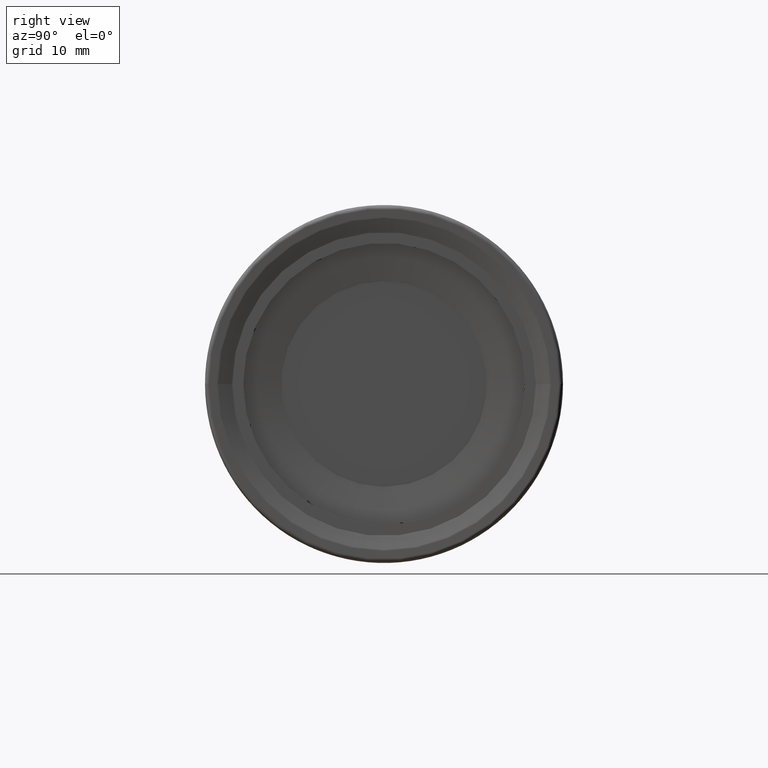
[diagram: clean part render]
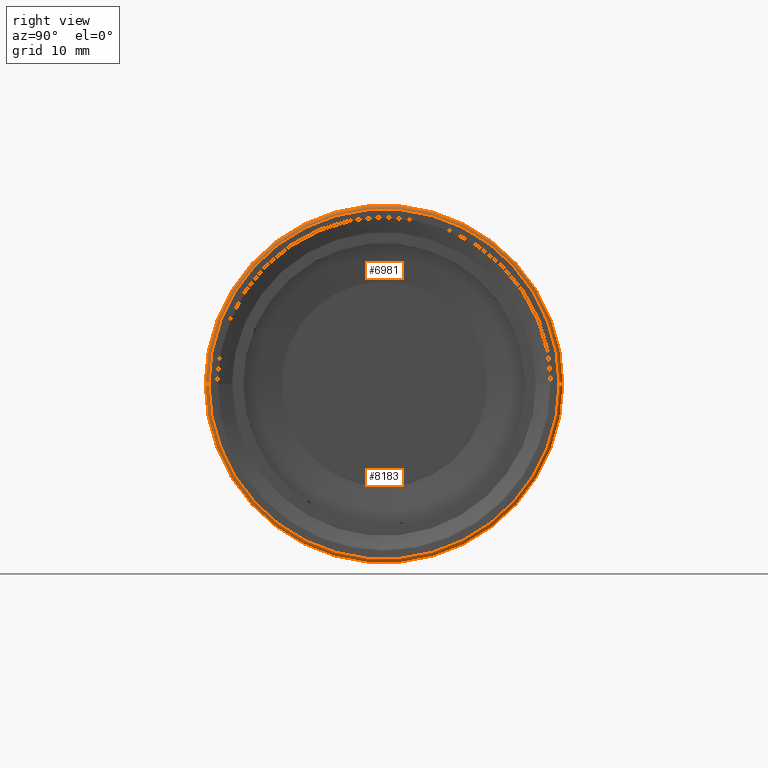
[diagram: same view with one multi-face feature highlighted, each face labeled with its STEP entity id]
A machine part, right view. The highlighted faces form ONE feature: a constant-radius fillet chain: 2 tangent blend faces with common blend radius 0.3973 mm. The faces share edges in the B-rep.
Their STEP definitions:
[1] entity #6981 (Torus):
#46 = ORIENTED_EDGE ( 'NONE', *, *, #8252, .T. ) ;
#47 = ORIENTED_EDGE ( 'NONE', *, *, #8247, .T. ) ;
#48 = ORIENTED_EDGE ( 'NONE', *, *, #8248, .F. ) ;
#49 = ORIENTED_EDGE ( 'NONE', *, *, #8250, .F. ) ;
#794 = CARTESIAN_POINT ( 'NONE',  ( 0.06184698097757743800, -19.97725509193579200, 2.446508150408933200E-015 ) ) ;
#803 = CARTESIAN_POINT ( 'NONE',  ( 0.4498085891554101100, 19.56774271559432400, 0.0000000000000000000 ) ) ;
#821 = CARTESIAN_POINT ( 'NONE',  ( 0.4498085891554148800, -19.56774271559432400, 2.421432749364043100E-015 ) ) ;
#831 = CARTESIAN_POINT ( 'NONE',  ( 0.06184698097757258800, 19.97725509193579200, 0.0000000000000000000 ) ) ;
#2157 = CIRCLE ( 'NONE', #2181, 19.56774271559432400 ) ;
#2173 = CIRCLE ( 'NONE', #2178, 0.3972863898013961900 ) ;
#2178 = AXIS2_PLACEMENT_3D ( 'NONE', #6635, #6636, #6637 ) ;
#2179 = CIRCLE ( 'NONE', #2185, 0.3972863898013975800 ) ;
#2181 = AXIS2_PLACEMENT_3D ( 'NONE', #6639, #6640, #6641 ) ;
#2185 = AXIS2_PLACEMENT_3D ( 'NONE', #6643, #6644, #6645 ) ;
#2186 = CIRCLE ( 'NONE', #2190, 19.97725509193579500 ) ;
#2190 = AXIS2_PLACEMENT_3D ( 'NONE', #6651, #6652, #6653 ) ;
#3282 = FACE_OUTER_BOUND ( 'NONE', #8976, .T. ) ;
#3285 = DIRECTION ( 'NONE',  ( 1.000000000000000000, 1.224646799147351200E-016, -0.0000000000000000000 ) ) ;
#3288 = CARTESIAN_POINT ( 'NONE',  ( 0.05271361019859348300, 0.0000000000000000000, 0.0000000000000000000 ) ) ;
#3290 = DIRECTION ( 'NONE',  ( -1.224646799147351200E-016, 1.000000000000000000, 0.0000000000000000000 ) ) ;
#5912 = TOROIDAL_SURFACE ( 'NONE', #5925, 19.58007370130974700, 0.3972863898013975200 ) ;
#5925 = AXIS2_PLACEMENT_3D ( 'NONE', #3288, #3285, #3290 ) ;
#6635 = CARTESIAN_POINT ( 'NONE',  ( 0.05271361019859588400, -19.58007370130974700, 2.397867458537825100E-015 ) ) ;
#6636 = DIRECTION ( 'NONE',  ( -1.499759782661855100E-032, 1.224646799147353200E-016, 1.000000000000000000 ) ) ;
#6637 = DIRECTION ( 'NONE',  ( 0.0000000000000000000, -1.000000000000000000, 1.224646799147356700E-016 ) ) ;
#6639 = CARTESIAN_POINT ( 'NONE',  ( 0.4498085891554125000, 5.508566489381619400E-017, 0.0000000000000000000 ) ) ;
#6640 = DIRECTION ( 'NONE',  ( 1.000000000000000000, 1.224646799147351200E-016, -0.0000000000000000000 ) ) ;
#6641 = DIRECTION ( 'NONE',  ( -1.218967774738376800E-016, 1.000000000000000000, 0.0000000000000000000 ) ) ;
#6643 = CARTESIAN_POINT ( 'NONE',  ( 0.05271361019859108900, 19.58007370130974700, 0.0000000000000000000 ) ) ;
#6644 = DIRECTION ( 'NONE',  ( -0.0000000000000000000, 0.0000000000000000000, -1.000000000000000000 ) ) ;
#6645 = DIRECTION ( 'NONE',  ( -1.000000000000000000, 0.0000000000000000000, 0.0000000000000000000 ) ) ;
#6651 = CARTESIAN_POINT ( 'NONE',  ( 0.06184698097757507900, 7.574070729111444400E-018, 0.0000000000000000000 ) ) ;
#6652 = DIRECTION ( 'NONE',  ( 1.000000000000000000, 1.224646799147351200E-016, -0.0000000000000000000 ) ) ;
#6653 = DIRECTION ( 'NONE',  ( -1.227900131404267600E-016, 1.000000000000000000, 0.0000000000000000000 ) ) ;
#6981 = ADVANCED_FACE ( 'NONE', ( #3282 ), #5912, .T. ) ;
#8247 = EDGE_CURVE ( 'NONE', #8565, #8592, #2173, .T. ) ;
#8248 = EDGE_CURVE ( 'NONE', #8574, #8592, #2157, .T. ) ;
#8250 = EDGE_CURVE ( 'NONE', #8602, #8574, #2179, .T. ) ;
#8252 = EDGE_CURVE ( 'NONE', #8602, #8565, #2186, .T. ) ;
#8565 = VERTEX_POINT ( 'NONE', #794 ) ;
#8574 = VERTEX_POINT ( 'NONE', #803 ) ;
#8592 = VERTEX_POINT ( 'NONE', #821 ) ;
#8602 = VERTEX_POINT ( 'NONE', #831 ) ;
#8976 = EDGE_LOOP ( 'NONE', ( #46, #47, #48, #49 ) ) ;
[2] entity #8183 (Torus):
#794 = CARTESIAN_POINT ( 'NONE',  ( 0.06184698097757743800, -19.97725509193579200, 2.446508150408933200E-015 ) ) ;
#803 = CARTESIAN_POINT ( 'NONE',  ( 0.4498085891554101100, 19.56774271559432400, 0.0000000000000000000 ) ) ;
#821 = CARTESIAN_POINT ( 'NONE',  ( 0.4498085891554148800, -19.56774271559432400, 2.421432749364043100E-015 ) ) ;
#831 = CARTESIAN_POINT ( 'NONE',  ( 0.06184698097757258800, 19.97725509193579200, 0.0000000000000000000 ) ) ;
#2092 = TOROIDAL_SURFACE ( 'NONE', #2106, 19.58007370130974700, 0.3972863898013975200 ) ;
#2106 = AXIS2_PLACEMENT_3D ( 'NONE', #5065, #5062, #5067 ) ;
#2173 = CIRCLE ( 'NONE', #2178, 0.3972863898013961900 ) ;
#2178 = AXIS2_PLACEMENT_3D ( 'NONE', #6635, #6636, #6637 ) ;
#2179 = CIRCLE ( 'NONE', #2185, 0.3972863898013975800 ) ;
#2184 = CIRCLE ( 'NONE', #2188, 19.56774271559432400 ) ;
#2185 = AXIS2_PLACEMENT_3D ( 'NONE', #6643, #6644, #6645 ) ;
#2188 = AXIS2_PLACEMENT_3D ( 'NONE', #6648, #6649, #6650 ) ;
#3266 = CARTESIAN_POINT ( 'NONE',  ( 0.06184698097757507900, 7.574070729111444400E-018, 0.0000000000000000000 ) ) ;
#3267 = DIRECTION ( 'NONE',  ( 1.000000000000000000, 1.224646799147351200E-016, -0.0000000000000000000 ) ) ;
#3268 = DIRECTION ( 'NONE',  ( -1.227900131404267600E-016, 1.000000000000000000, 0.0000000000000000000 ) ) ;
#3794 = ORIENTED_EDGE ( 'NONE', *, *, #8247, .F. ) ;
#3795 = ORIENTED_EDGE ( 'NONE', *, *, #6975, .T. ) ;
#3796 = ORIENTED_EDGE ( 'NONE', *, *, #8250, .T. ) ;
#3797 = ORIENTED_EDGE ( 'NONE', *, *, #8251, .F. ) ;
#5060 = FACE_OUTER_BOUND ( 'NONE', #9001, .T. ) ;
#5062 = DIRECTION ( 'NONE',  ( 1.000000000000000000, 1.224646799147351200E-016, -0.0000000000000000000 ) ) ;
#5065 = CARTESIAN_POINT ( 'NONE',  ( 0.05271361019859348300, 0.0000000000000000000, 0.0000000000000000000 ) ) ;
#5067 = DIRECTION ( 'NONE',  ( -1.224646799147351200E-016, 1.000000000000000000, 0.0000000000000000000 ) ) ;
#5907 = CIRCLE ( 'NONE', #5913, 19.97725509193579500 ) ;
#5913 = AXIS2_PLACEMENT_3D ( 'NONE', #3266, #3267, #3268 ) ;
#6635 = CARTESIAN_POINT ( 'NONE',  ( 0.05271361019859588400, -19.58007370130974700, 2.397867458537825100E-015 ) ) ;
#6636 = DIRECTION ( 'NONE',  ( -1.499759782661855100E-032, 1.224646799147353200E-016, 1.000000000000000000 ) ) ;
#6637 = DIRECTION ( 'NONE',  ( 0.0000000000000000000, -1.000000000000000000, 1.224646799147356700E-016 ) ) ;
#6643 = CARTESIAN_POINT ( 'NONE',  ( 0.05271361019859108900, 19.58007370130974700, 0.0000000000000000000 ) ) ;
#6644 = DIRECTION ( 'NONE',  ( -0.0000000000000000000, 0.0000000000000000000, -1.000000000000000000 ) ) ;
#6645 = DIRECTION ( 'NONE',  ( -1.000000000000000000, 0.0000000000000000000, 0.0000000000000000000 ) ) ;
#6648 = CARTESIAN_POINT ( 'NONE',  ( 0.4498085891554125000, 5.508566489381619400E-017, 0.0000000000000000000 ) ) ;
#6649 = DIRECTION ( 'NONE',  ( 1.000000000000000000, 1.224646799147351200E-016, -0.0000000000000000000 ) ) ;
#6650 = DIRECTION ( 'NONE',  ( -1.218967774738376800E-016, 1.000000000000000000, 0.0000000000000000000 ) ) ;
#6975 = EDGE_CURVE ( 'NONE', #8565, #8602, #5907, .T. ) ;
#8183 = ADVANCED_FACE ( 'NONE', ( #5060 ), #2092, .T. ) ;
#8247 = EDGE_CURVE ( 'NONE', #8565, #8592, #2173, .T. ) ;
#8250 = EDGE_CURVE ( 'NONE', #8602, #8574, #2179, .T. ) ;
#8251 = EDGE_CURVE ( 'NONE', #8592, #8574, #2184, .T. ) ;
#8565 = VERTEX_POINT ( 'NONE', #794 ) ;
#8574 = VERTEX_POINT ( 'NONE', #803 ) ;
#8592 = VERTEX_POINT ( 'NONE', #821 ) ;
#8602 = VERTEX_POINT ( 'NONE', #831 ) ;
#9001 = EDGE_LOOP ( 'NONE', ( #3794, #3795, #3796, #3797 ) ) ;